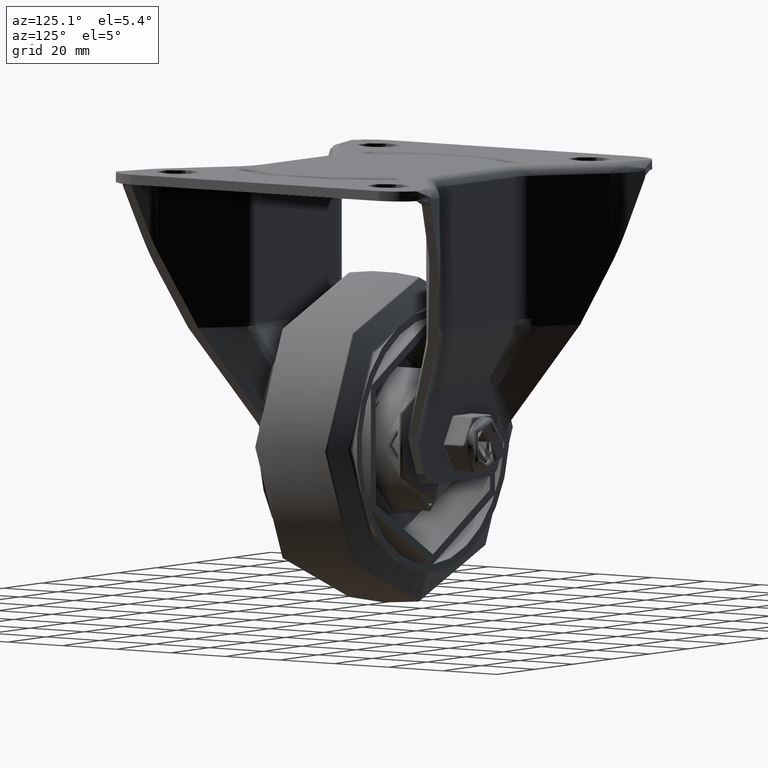
[diagram: clean part render]
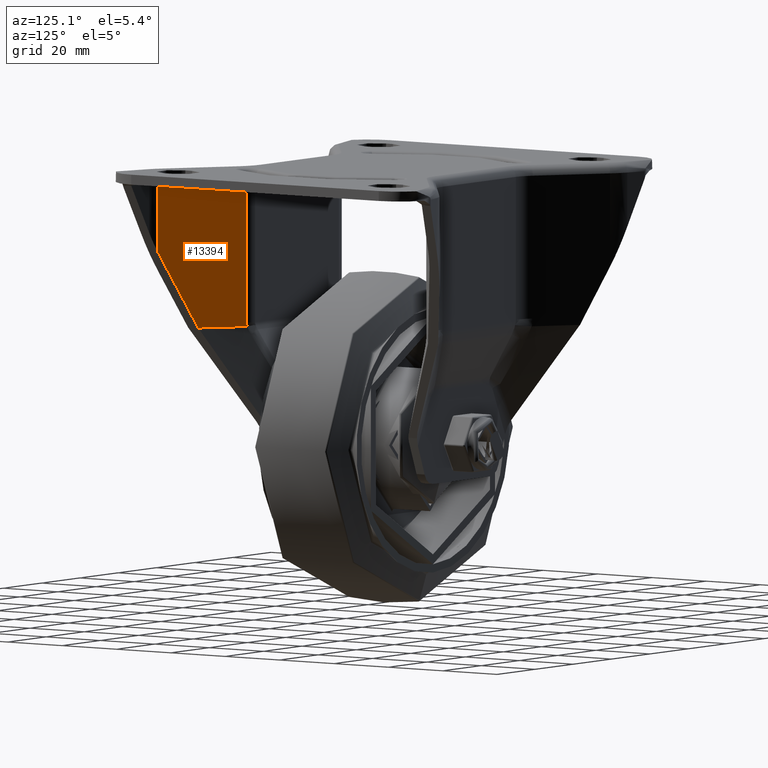
[diagram: same view with one face highlighted and labeled with its STEP entity id]
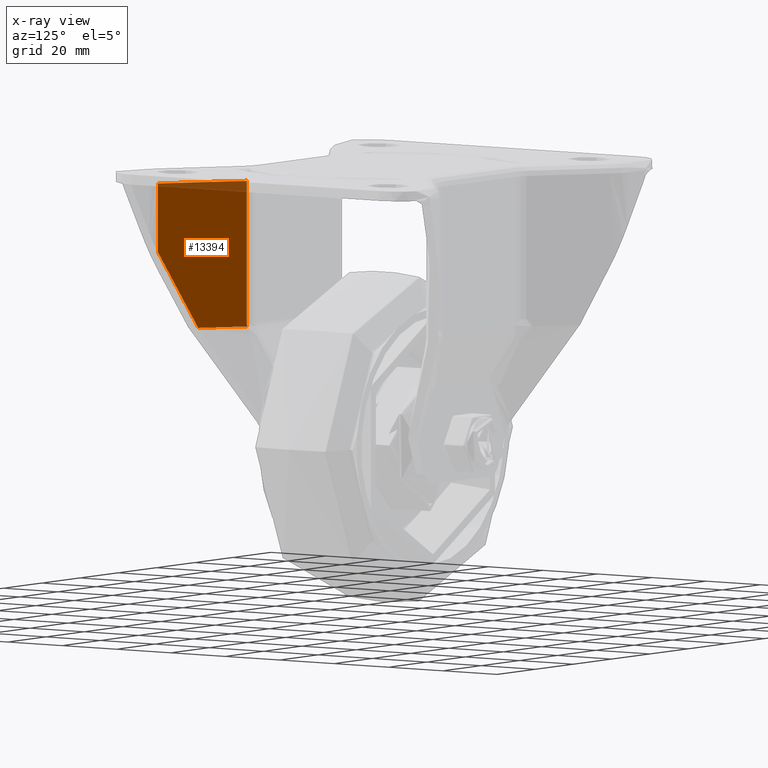
[diagram: x-ray of the same camera — body ghosted, the highlighted face saturated]
A machine part, auxiliary view. The second image highlights one B-rep face of the part: STEP entity #13394.
The next image is the same camera in x-ray: the body ghosted, the highlighted face saturated — about 6% of this face is hidden behind the body in this view.
In plain terms, the highlighted planar face has unit normal (-0.6026, -0.798, 0).
Its self-contained STEP definition (entity closure, byte-faithful):
#695=PLANE('',#14538);
#1605=ELLIPSE('',#14539,18.2541508933076,11.);
#1835=FACE_OUTER_BOUND('',#2672,.T.);
#2672=EDGE_LOOP('',(#10124,#10125,#10126,#10127,#10128,#10129));
#3391=LINE('',#18588,#4250);
#3393=LINE('',#18596,#4252);
#3405=LINE('',#18671,#4264);
#3659=LINE('',#28306,#4518);
#3660=LINE('',#28307,#4519);
#4250=VECTOR('',#15352,1000.);
#4252=VECTOR('',#15360,1000.);
#4264=VECTOR('',#15410,1000.);
#4518=VECTOR('',#16394,1000.);
#4519=VECTOR('',#16395,1000.);
#5613=VERTEX_POINT('',#18584);
#5615=VERTEX_POINT('',#18587);
#5617=VERTEX_POINT('',#18593);
#5637=VERTEX_POINT('',#18669);
#6005=VERTEX_POINT('',#28303);
#6006=VERTEX_POINT('',#28305);
#6935=EDGE_CURVE('',#5613,#5615,#3391,.T.);
#6939=EDGE_CURVE('',#5617,#5613,#3393,.T.);
#6967=EDGE_CURVE('',#5637,#5617,#3405,.T.);
#7540=EDGE_CURVE('',#5615,#6005,#1605,.T.);
#7541=EDGE_CURVE('',#6006,#5637,#3659,.T.);
#7542=EDGE_CURVE('',#6006,#6005,#3660,.T.);
#10124=ORIENTED_EDGE('',*,*,#7540,.F.);
#10125=ORIENTED_EDGE('',*,*,#6935,.F.);
#10126=ORIENTED_EDGE('',*,*,#6939,.F.);
#10127=ORIENTED_EDGE('',*,*,#6967,.F.);
#10128=ORIENTED_EDGE('',*,*,#7541,.F.);
#10129=ORIENTED_EDGE('',*,*,#7542,.T.);
#13394=ADVANCED_FACE('',(#1835),#695,.F.);
#14538=AXIS2_PLACEMENT_3D('',#28302,#16390,#16391);
#14539=AXIS2_PLACEMENT_3D('',#28304,#16392,#16393);
#15352=DIRECTION('',(0.,0.,-1.));
#15360=DIRECTION('',(-0.798041368930957,0.602602666335625,0.));
#15410=DIRECTION('',(0.,0.,1.));
#16390=DIRECTION('center_axis',(-0.602602666335625,-0.798041368930957,0.));
#16391=DIRECTION('ref_axis',(0.,0.,1.));
#16392=DIRECTION('center_axis',(0.602602666335625,0.798041368930957,0.));
#16393=DIRECTION('ref_axis',(0.798041368930957,-0.602602666335625,3.30235249738703E-15));
#16394=DIRECTION('',(0.383189096501707,-0.289346868787006,0.877179859461764));
#16395=DIRECTION('',(-0.798041368930957,0.602602666335625,0.));
#18584=CARTESIAN_POINT('',(24.8441209189477,-33.0056293781855,-4.5));
#18587=CARTESIAN_POINT('',(24.8441209189477,-33.0056293781855,-47.3284655495746));
#18588=CARTESIAN_POINT('',(24.8441209189477,-33.0056293781855,-48.5));
#18593=CARTESIAN_POINT('',(47.2397090681516,-49.9165836949314,-4.5));
#18596=CARTESIAN_POINT('',(14.5556092061856,-25.2367531869161,-4.5));
#18669=CARTESIAN_POINT('',(47.2397090681516,-49.9165836949314,-25.2283768319406));
#18671=CARTESIAN_POINT('',(47.2397090681516,-49.9165836949314,-48.5));
#28302=CARTESIAN_POINT('Origin',(35.9620418937003,-41.4007941958559,-48.5));
#28303=CARTESIAN_POINT('',(24.7612659389834,-32.9430654137226,-48.5));
#28304=CARTESIAN_POINT('Origin',(10.2765533513803,-22.0056293781855,-47.3284655495746));
#28305=CARTESIAN_POINT('',(37.0736842105259,-42.2401975779487,-48.5));
#28306=CARTESIAN_POINT('',(36.1048634955009,-41.5086390788482,-50.7177823596959));
#28307=CARTESIAN_POINT('',(14.854746810448,-25.4626326023796,-48.5));